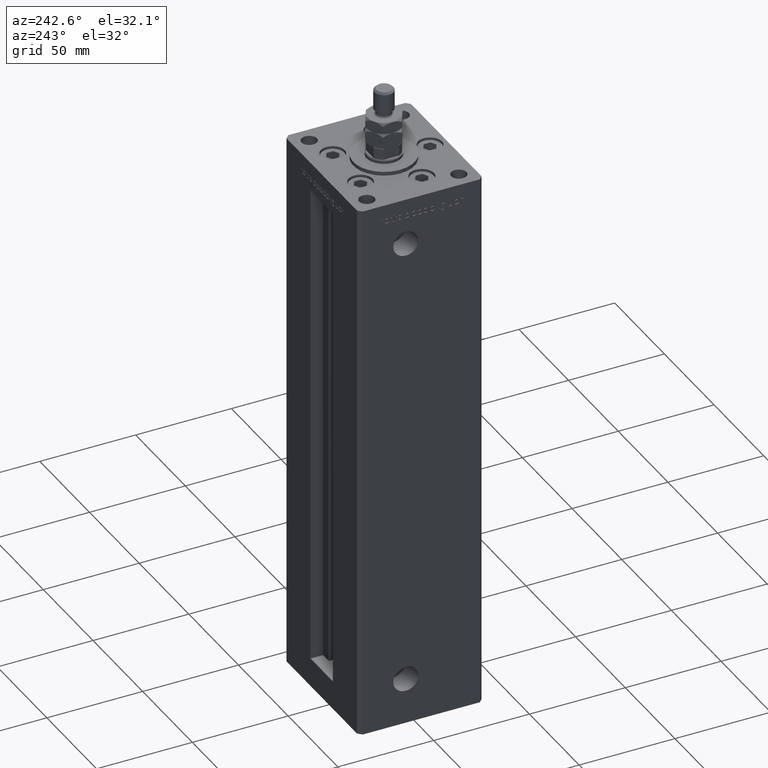
[diagram: clean part render]
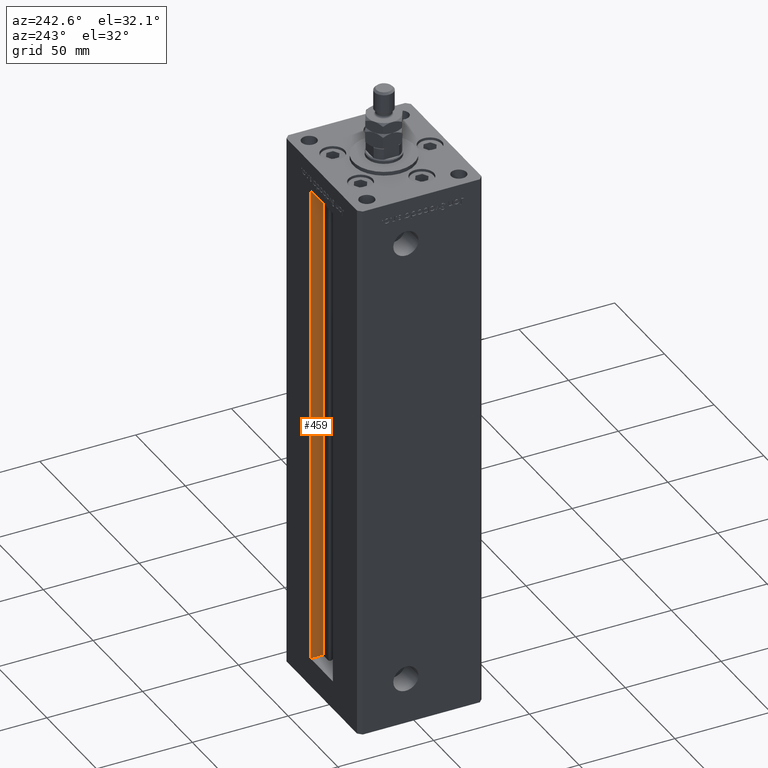
[diagram: same view with one face highlighted and labeled with its STEP entity id]
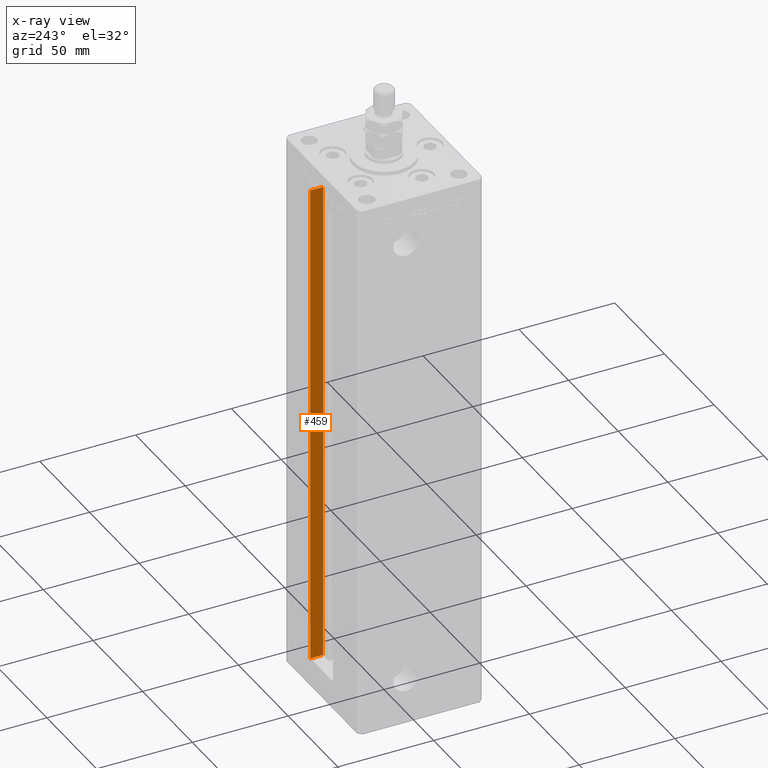
[diagram: x-ray of the same camera — body ghosted, the highlighted face saturated]
A machine part, auxiliary view. The second image highlights one B-rep face of the part: STEP entity #459.
The next image is the same camera in x-ray: the body ghosted, the highlighted face saturated — about 0% of this face is hidden behind the body in this view.
In plain terms, the highlighted planar face has unit normal (1, 0, 0).
Its self-contained STEP definition (entity closure, byte-faithful):
#459 = ADVANCED_FACE ( 'NONE', ( #33927 ), #29849, .F. ) ;
#1197 = DIRECTION ( 'NONE',  ( -0.000000000000000000, -0.000000000000000000, 1.000000000000000000 ) ) ;
#2658 = VERTEX_POINT ( 'NONE', #35883 ) ;
#4166 = VECTOR ( 'NONE', #39519, 1000.000000000000000 ) ;
#5074 = LINE ( 'NONE', #18358, #5961 ) ;
#5811 = CARTESIAN_POINT ( 'NONE',  ( 11.25000000000000178, 32.49999999999999289, 0.000000000000000000 ) ) ;
#5961 = VECTOR ( 'NONE', #8881, 1000.000000000000000 ) ;
#6340 = VERTEX_POINT ( 'NONE', #12262 ) ;
#6714 = EDGE_LOOP ( 'NONE', ( #28509, #42502, #43428, #51430 ) ) ;
#8881 = DIRECTION ( 'NONE',  ( -0.000000000000000000, -1.000000000000000000, 0.000000000000000000 ) ) ;
#12262 = CARTESIAN_POINT ( 'NONE',  ( 11.25000000000000178, 32.49999999999999289, 0.000000000000000000 ) ) ;
#12737 = DIRECTION ( 'NONE',  ( 1.000000000000000000, -0.000000000000000000, 0.000000000000000000 ) ) ;
#16170 = EDGE_CURVE ( 'NONE', #6340, #2658, #18566, .T. ) ;
#17504 = EDGE_CURVE ( 'NONE', #31635, #6340, #35702, .T. ) ;
#18358 = CARTESIAN_POINT ( 'NONE',  ( 11.25000000000000178, 0.000000000000000000, 256.0000000000000000 ) ) ;
#18566 = LINE ( 'NONE', #5811, #50993 ) ;
#22925 = CARTESIAN_POINT ( 'NONE',  ( 11.25000000000000178, 25.99999999999999289, 0.000000000000000000 ) ) ;
#23445 = EDGE_CURVE ( 'NONE', #2658, #34259, #5074, .T. ) ;
#24215 = DIRECTION ( 'NONE',  ( -0.000000000000000000, -0.000000000000000000, 1.000000000000000000 ) ) ;
#24746 = CARTESIAN_POINT ( 'NONE',  ( 11.25000000000000178, 25.99999999999999289, 0.000000000000000000 ) ) ;
#28509 = ORIENTED_EDGE ( 'NONE', *, *, #16170, .F. ) ;
#29849 = PLANE ( 'NONE',  #46517 ) ;
#30014 = CARTESIAN_POINT ( 'NONE',  ( 11.25000000000000178, 25.99999999999999289, 0.000000000000000000 ) ) ;
#31635 = VERTEX_POINT ( 'NONE', #30014 ) ;
#33126 = CARTESIAN_POINT ( 'NONE',  ( 11.25000000000000178, 25.99999999999999289, 0.000000000000000000 ) ) ;
#33927 = FACE_OUTER_BOUND ( 'NONE', #6714, .T. ) ;
#34259 = VERTEX_POINT ( 'NONE', #46781 ) ;
#34408 = VECTOR ( 'NONE', #24215, 1000.000000000000000 ) ;
#35702 = LINE ( 'NONE', #22925, #4166 ) ;
#35883 = CARTESIAN_POINT ( 'NONE',  ( 11.24999999999999467, 32.49999999999999289, 256.0000000000000000 ) ) ;
#39519 = DIRECTION ( 'NONE',  ( 0.000000000000000000, 1.000000000000000000, 0.000000000000000000 ) ) ;
#42502 = ORIENTED_EDGE ( 'NONE', *, *, #17504, .F. ) ;
#43428 = ORIENTED_EDGE ( 'NONE', *, *, #48102, .T. ) ;
#45403 = LINE ( 'NONE', #24746, #34408 ) ;
#46517 = AXIS2_PLACEMENT_3D ( 'NONE', #33126, #12737, #49715 ) ;
#46781 = CARTESIAN_POINT ( 'NONE',  ( 11.25000000000000178, 25.99999999999999289, 256.0000000000000000 ) ) ;
#48102 = EDGE_CURVE ( 'NONE', #31635, #34259, #45403, .T. ) ;
#49715 = DIRECTION ( 'NONE',  ( 0.000000000000000000, 0.000000000000000000, -1.000000000000000000 ) ) ;
#50993 = VECTOR ( 'NONE', #1197, 1000.000000000000000 ) ;
#51430 = ORIENTED_EDGE ( 'NONE', *, *, #23445, .F. ) ;